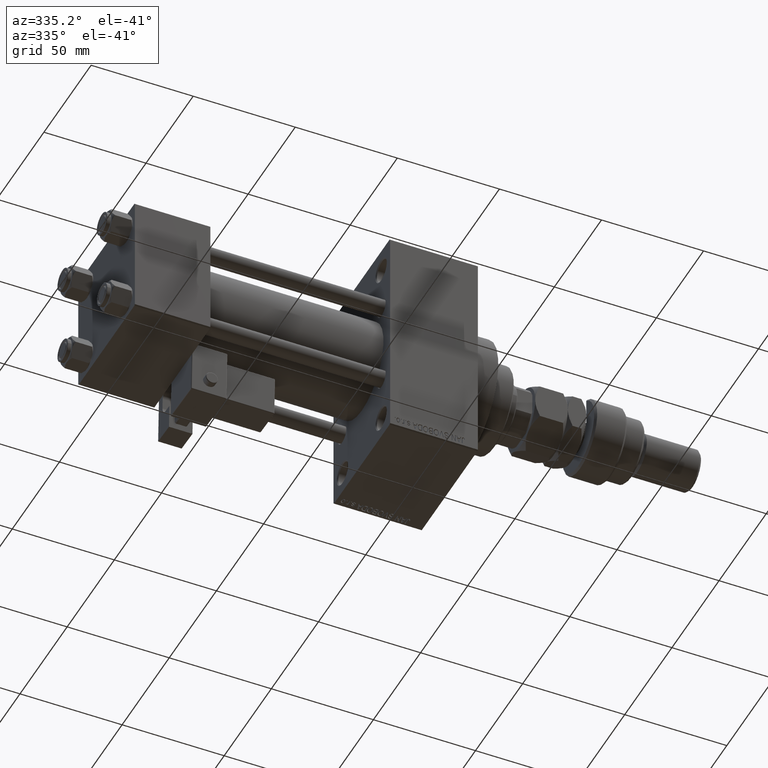
[diagram: clean part render]
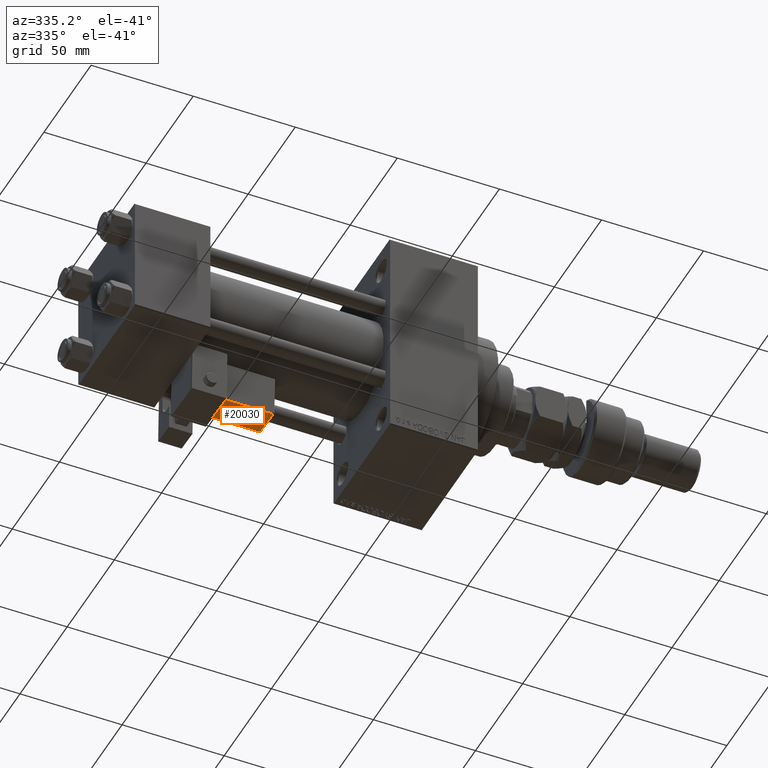
[diagram: same view with one face highlighted and labeled with its STEP entity id]
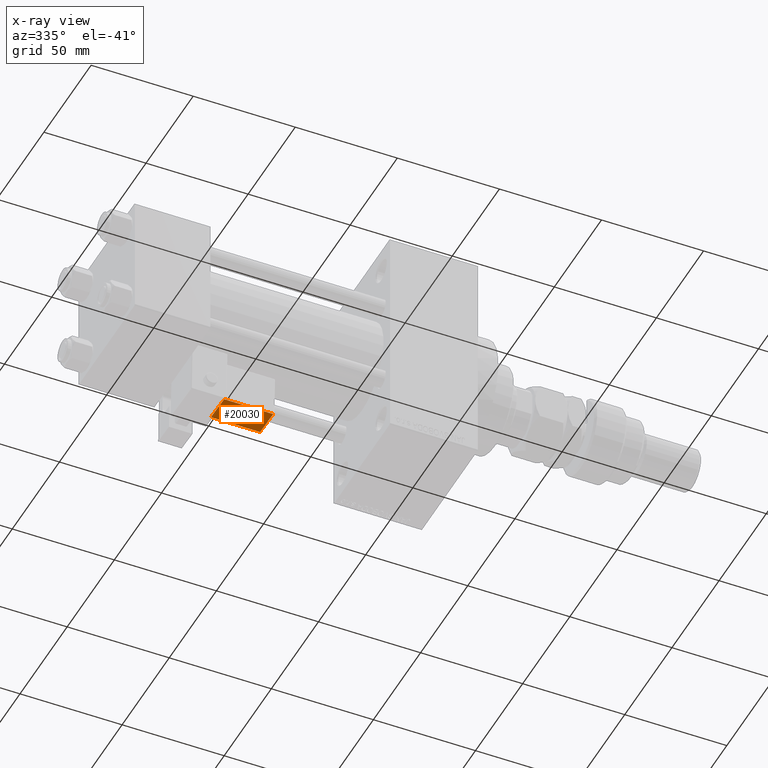
[diagram: x-ray of the same camera — body ghosted, the highlighted face saturated]
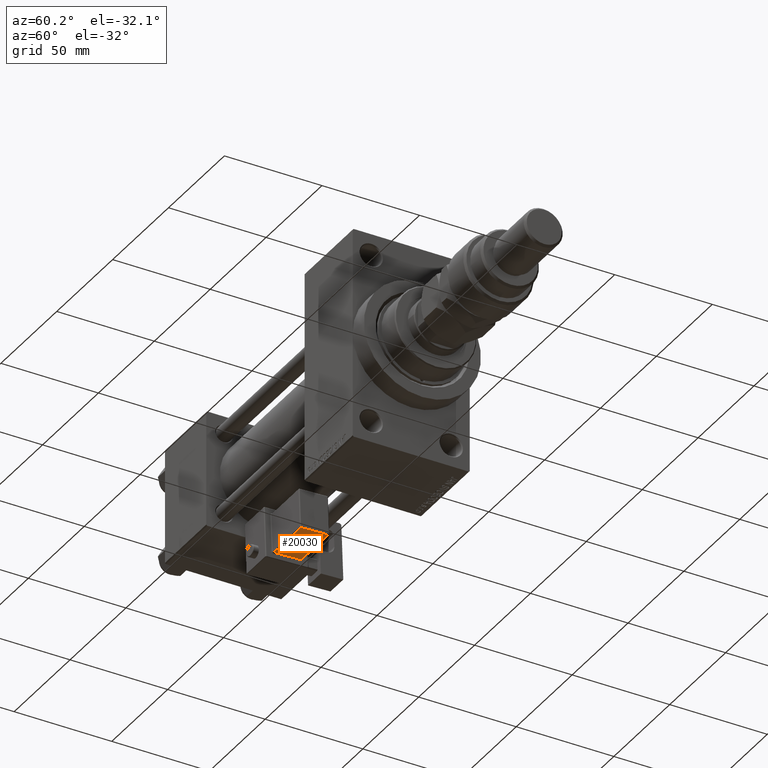
[diagram: same view with one face highlighted and labeled with its STEP entity id]
A machine part, auxiliary view. The second image highlights one B-rep face of the part: STEP entity #20030.
The next image is the same camera in x-ray: the body ghosted, the highlighted face saturated — about 0% of this face is hidden behind the body in this view.
A second angle (auxiliary view) of the same face is appended — the face is thin or edge-on in the first view.
In plain terms, the highlighted planar face has unit normal (-0, -0.0353, 0.9994).
Its self-contained STEP definition (entity closure, byte-faithful):
#247 = EDGE_LOOP ( 'NONE', ( #34008, #50637, #27390, #10255 ) ) ;
#423 = DIRECTION ( 'NONE',  ( 5.473822126268816683E-48, -1.000000000000000000, -1.156482317317871725E-16 ) ) ;
#979 = CARTESIAN_POINT ( 'NONE',  ( 9.250000000000005329, -17.24999999999999289, 2.000000000000007105 ) ) ;
#3833 = DIRECTION ( 'NONE',  ( 1.000000000000000000, 0.000000000000000000, 1.334402673828313339E-16 ) ) ;
#6153 = AXIS2_PLACEMENT_3D ( 'NONE', #41091, #16266, #3833 ) ;
#6250 = VERTEX_POINT ( 'NONE', #45108 ) ;
#6574 = VECTOR ( 'NONE', #48115, 1000.000000000000000 ) ;
#7573 = VECTOR ( 'NONE', #30714, 1000.000000000000000 ) ;
#10255 = ORIENTED_EDGE ( 'NONE', *, *, #33924, .T. ) ;
#10588 = CARTESIAN_POINT ( 'NONE',  ( 33.75000000000000000, -31.74999999999999289, 2.000000000000008438 ) ) ;
#13247 = VERTEX_POINT ( 'NONE', #41575 ) ;
#13328 = CARTESIAN_POINT ( 'NONE',  ( 33.75000000000000000, -17.74999999999999645, 2.000000000000010214 ) ) ;
#14146 = VECTOR ( 'NONE', #423, 1000.000000000000000 ) ;
#14768 = LINE ( 'NONE', #979, #37545 ) ;
#16266 = DIRECTION ( 'NONE',  ( -1.334402673828313339E-16, -1.156482317317871725E-16, 1.000000000000000000 ) ) ;
#16431 = CARTESIAN_POINT ( 'NONE',  ( 9.250000000000005329, -17.74999999999999645, 2.000000000000006661 ) ) ;
#18111 = DIRECTION ( 'NONE',  ( -1.543213096464132036E-32, 1.000000000000000000, 1.156482317317871725E-16 ) ) ;
#20030 = ADVANCED_FACE ( 'NONE', ( #29245 ), #24018, .F. ) ;
#24018 = PLANE ( 'NONE',  #6153 ) ;
#27390 = ORIENTED_EDGE ( 'NONE', *, *, #34607, .T. ) ;
#27715 = LINE ( 'NONE', #10588, #6574 ) ;
#29245 = FACE_OUTER_BOUND ( 'NONE', #247, .T. ) ;
#30060 = EDGE_CURVE ( 'NONE', #13247, #51709, #27715, .T. ) ;
#30714 = DIRECTION ( 'NONE',  ( 1.000000000000000000, -0.000000000000000000, 1.334402673828313339E-16 ) ) ;
#33924 = EDGE_CURVE ( 'NONE', #51026, #6250, #39512, .T. ) ;
#34008 = ORIENTED_EDGE ( 'NONE', *, *, #45731, .T. ) ;
#34607 = EDGE_CURVE ( 'NONE', #51709, #51026, #14768, .T. ) ;
#37545 = VECTOR ( 'NONE', #18111, 1000.000000000000000 ) ;
#39512 = LINE ( 'NONE', #13328, #7573 ) ;
#41091 = CARTESIAN_POINT ( 'NONE',  ( 33.75000000000000000, -17.24999999999999289, 2.000000000000010214 ) ) ;
#41575 = CARTESIAN_POINT ( 'NONE',  ( 33.25000000000000000, -31.74999999999999289, 2.000000000000008438 ) ) ;
#43188 = LINE ( 'NONE', #51764, #14146 ) ;
#45108 = CARTESIAN_POINT ( 'NONE',  ( 33.25000000000000000, -17.74999999999999645, 2.000000000000010214 ) ) ;
#45731 = EDGE_CURVE ( 'NONE', #6250, #13247, #43188, .T. ) ;
#48115 = DIRECTION ( 'NONE',  ( -1.000000000000000000, 0.000000000000000000, -1.334402673828313339E-16 ) ) ;
#50637 = ORIENTED_EDGE ( 'NONE', *, *, #30060, .T. ) ;
#51026 = VERTEX_POINT ( 'NONE', #16431 ) ;
#51709 = VERTEX_POINT ( 'NONE', #54270 ) ;
#51764 = CARTESIAN_POINT ( 'NONE',  ( 33.25000000000000000, -32.24999999999999289, 2.000000000000008438 ) ) ;
#54270 = CARTESIAN_POINT ( 'NONE',  ( 9.250000000000005329, -31.74999999999999289, 2.000000000000005329 ) ) ;